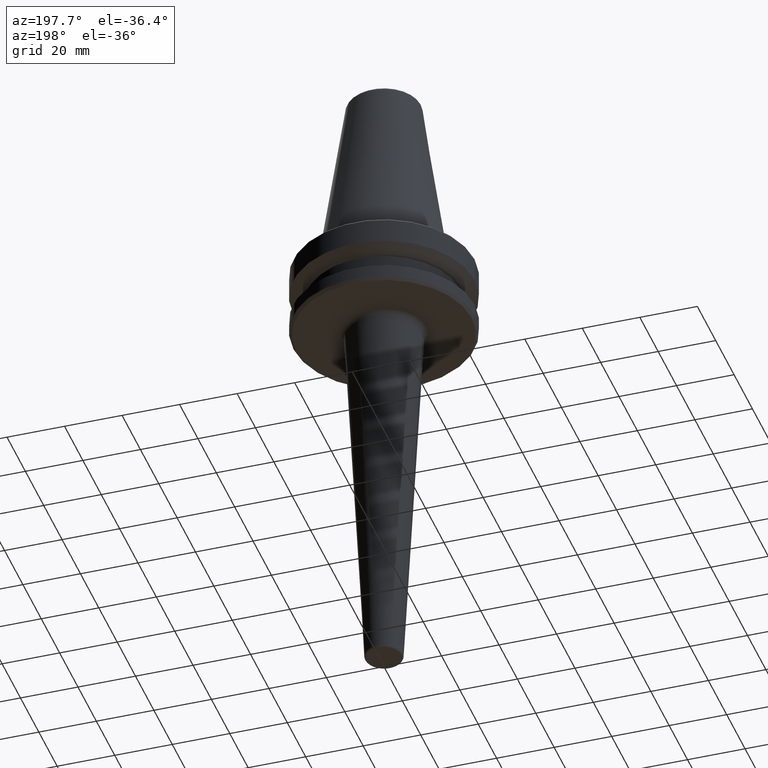
[diagram: clean part render]
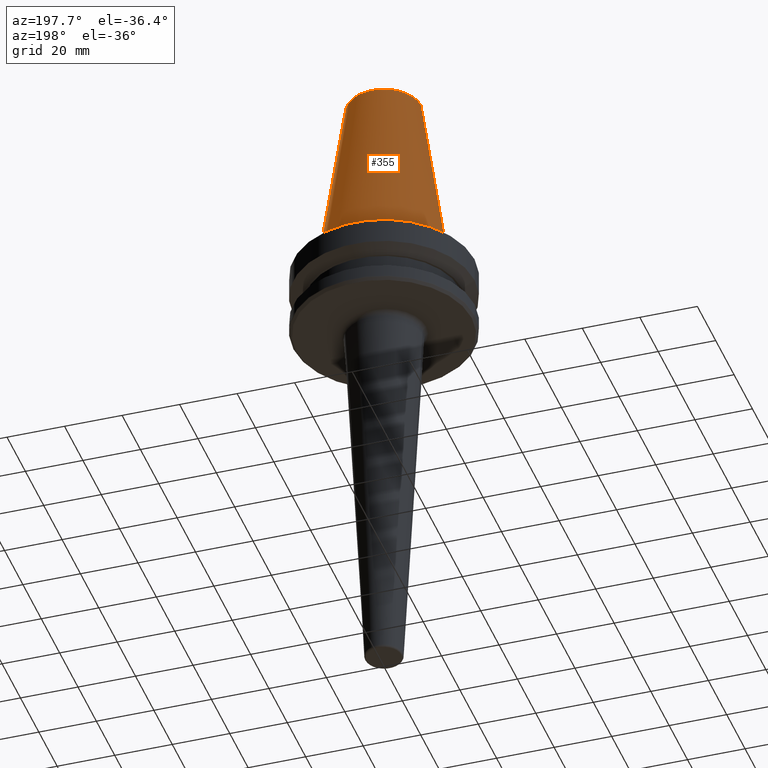
[diagram: same view with one face highlighted and labeled with its STEP entity id]
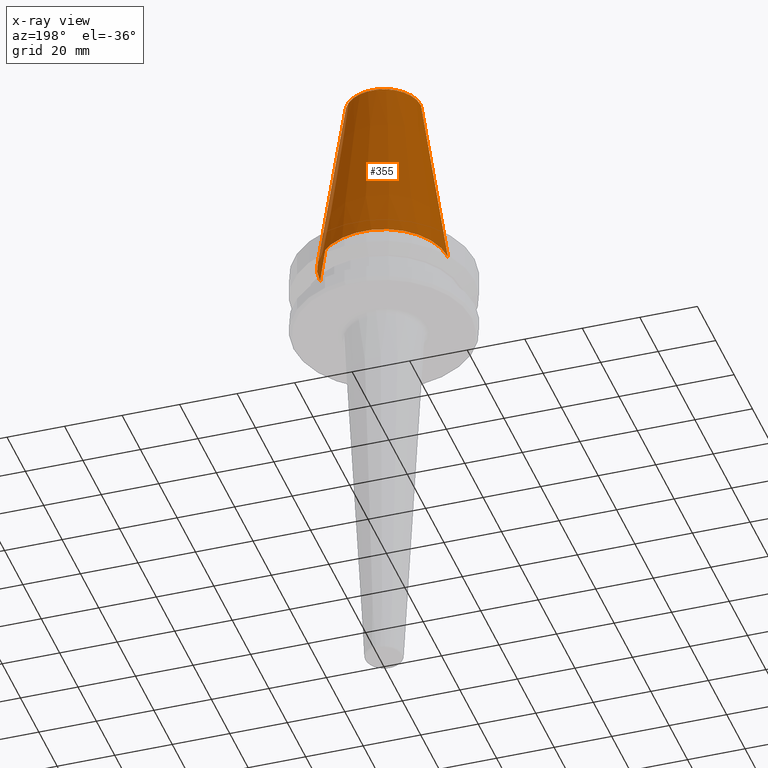
[diagram: x-ray of the same camera — body ghosted, the highlighted face saturated]
A machine part, auxiliary view. The second image highlights one B-rep face of the part: STEP entity #355.
The next image is the same camera in x-ray: the body ghosted, the highlighted face saturated — about 1% of this face is hidden behind the body in this view.
In plain terms, the highlighted conical surface has half-angle 8.297 deg.
Its self-contained STEP definition (entity closure, byte-faithful):
#89 = DIRECTION ( 'NONE',  ( -0.0000000000000000000, -0.0000000000000000000, -1.000000000000000000 ) ) ;
#113 = CARTESIAN_POINT ( 'NONE',  ( 12.81219950706223500, 1.569041911636106400E-015, 64.54430822726730800 ) ) ;
#117 = EDGE_CURVE ( 'NONE', #965, #886, #1047, .T. ) ;
#176 = AXIS2_PLACEMENT_3D ( 'NONE', #1127, #89, #661 ) ;
#226 = DIRECTION ( 'NONE',  ( -0.0000000000000000000, -0.0000000000000000000, -1.000000000000000000 ) ) ;
#263 = CARTESIAN_POINT ( 'NONE',  ( -22.22500000000000100, 0.0000000000000000000, 0.0000000000000000000 ) ) ;
#354 = VECTOR ( 'NONE', #574, 1000.000000000000100 ) ;
#355 = ADVANCED_FACE ( 'NONE', ( #1050 ), #1161, .T. ) ;
#356 = LINE ( 'NONE', #263, #354 ) ;
#385 = CARTESIAN_POINT ( 'NONE',  ( -22.22500000000000100, 2.721777511104992800E-015, 0.0000000000000000000 ) ) ;
#432 = ORIENTED_EDGE ( 'NONE', *, *, #454, .F. ) ;
#454 = EDGE_CURVE ( 'NONE', #1116, #866, #542, .T. ) ;
#476 = VECTOR ( 'NONE', #1071, 1000.000000000000100 ) ;
#485 = LINE ( 'NONE', #971, #476 ) ;
#542 = CIRCLE ( 'NONE', #1168, 22.22500000000000100 ) ;
#562 = EDGE_CURVE ( 'NONE', #886, #866, #485, .T. ) ;
#574 = DIRECTION ( 'NONE',  ( -0.1443082272673072200, 0.0000000000000000000, -0.9895327864921744700 ) ) ;
#602 = ORIENTED_EDGE ( 'NONE', *, *, #562, .T. ) ;
#661 = DIRECTION ( 'NONE',  ( -1.000000000000000000, 0.0000000000000000000, 0.0000000000000000000 ) ) ;
#678 = CARTESIAN_POINT ( 'NONE',  ( 22.22500000000000100, 0.0000000000000000000, 0.0000000000000000000 ) ) ;
#691 = EDGE_LOOP ( 'NONE', ( #1179, #602, #432, #792 ) ) ;
#694 = DIRECTION ( 'NONE',  ( -1.000000000000000000, 0.0000000000000000000, 0.0000000000000000000 ) ) ;
#728 = DIRECTION ( 'NONE',  ( -1.000000000000000000, 0.0000000000000000000, 0.0000000000000000000 ) ) ;
#763 = EDGE_CURVE ( 'NONE', #965, #1116, #356, .T. ) ;
#792 = ORIENTED_EDGE ( 'NONE', *, *, #763, .F. ) ;
#866 = VERTEX_POINT ( 'NONE', #678 ) ;
#886 = VERTEX_POINT ( 'NONE', #113 ) ;
#961 = AXIS2_PLACEMENT_3D ( 'NONE', #1207, #1130, #694 ) ;
#965 = VERTEX_POINT ( 'NONE', #1128 ) ;
#971 = CARTESIAN_POINT ( 'NONE',  ( 22.22500000000000100, 2.721777511104992800E-015, 0.0000000000000000000 ) ) ;
#1047 = CIRCLE ( 'NONE', #961, 12.81219950706223700 ) ;
#1050 = FACE_OUTER_BOUND ( 'NONE', #691, .T. ) ;
#1071 = DIRECTION ( 'NONE',  ( 0.1443082272673072200, 1.767266086135366100E-017, -0.9895327864921744700 ) ) ;
#1116 = VERTEX_POINT ( 'NONE', #385 ) ;
#1127 = CARTESIAN_POINT ( 'NONE',  ( 0.0000000000000000000, 0.0000000000000000000, 0.0000000000000000000 ) ) ;
#1128 = CARTESIAN_POINT ( 'NONE',  ( -12.81219950706223500, 0.0000000000000000000, 64.54430822726730800 ) ) ;
#1130 = DIRECTION ( 'NONE',  ( -0.0000000000000000000, -0.0000000000000000000, -1.000000000000000000 ) ) ;
#1147 = CARTESIAN_POINT ( 'NONE',  ( 0.0000000000000000000, 0.0000000000000000000, 0.0000000000000000000 ) ) ;
#1161 = CONICAL_SURFACE ( 'NONE', #176, 22.22500000000000100, 0.1448138465474192700 ) ;
#1168 = AXIS2_PLACEMENT_3D ( 'NONE', #1147, #226, #728 ) ;
#1179 = ORIENTED_EDGE ( 'NONE', *, *, #117, .T. ) ;
#1207 = CARTESIAN_POINT ( 'NONE',  ( 0.0000000000000000000, 0.0000000000000000000, 64.54430822726730800 ) ) ;